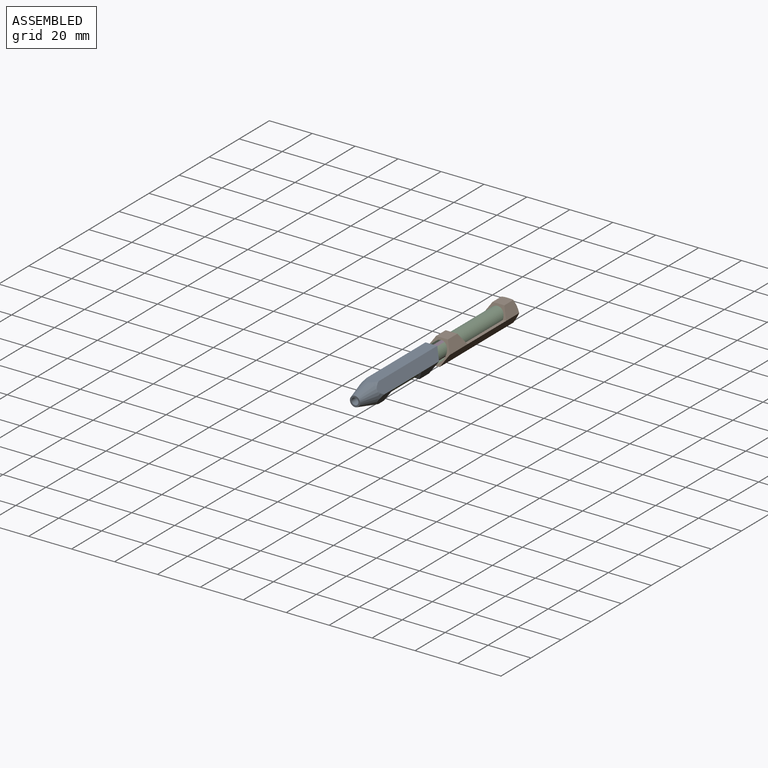
[diagram: assembled view]
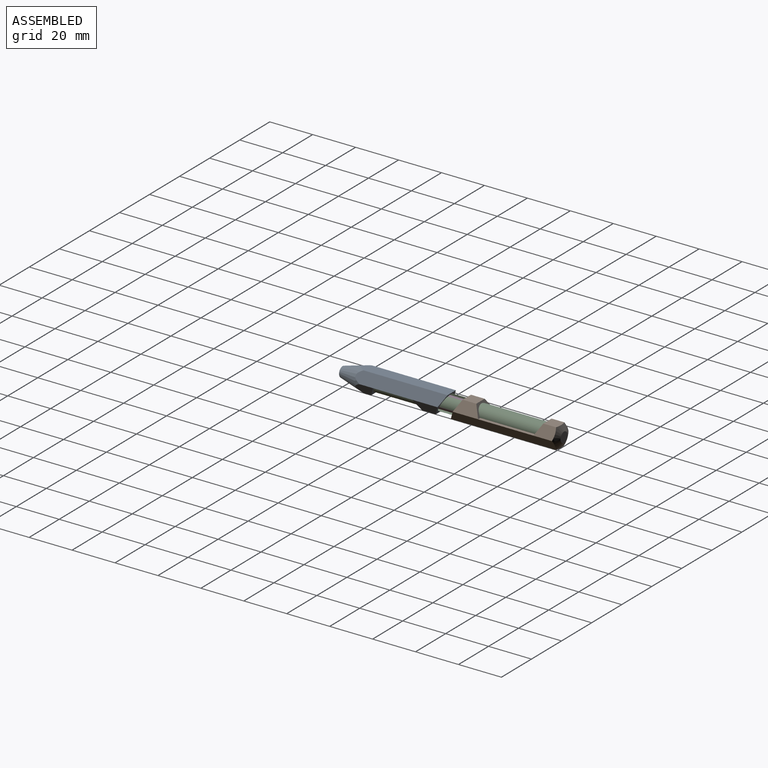
[diagram: assembled view, second angle]
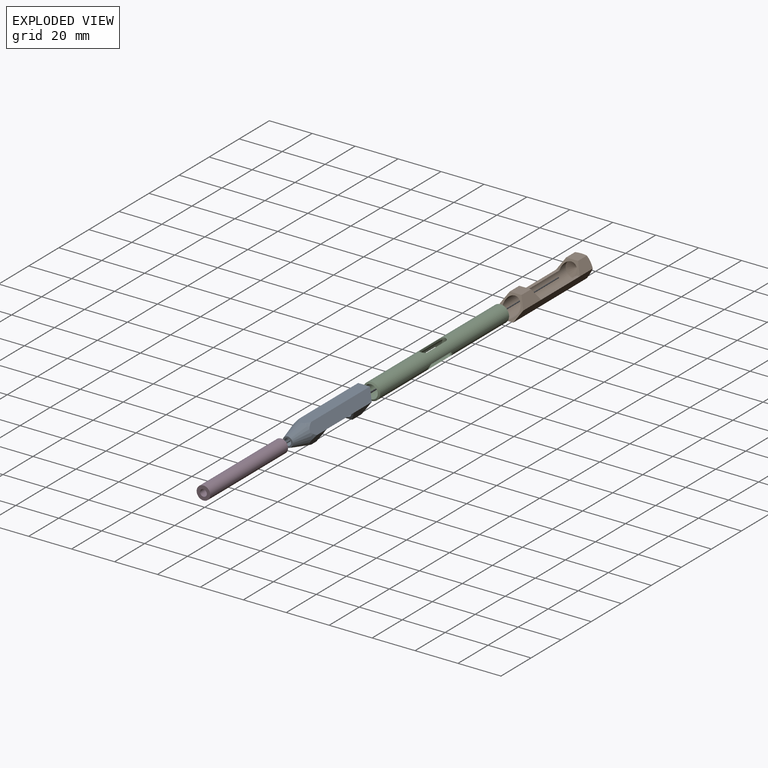
[diagram: exploded view]
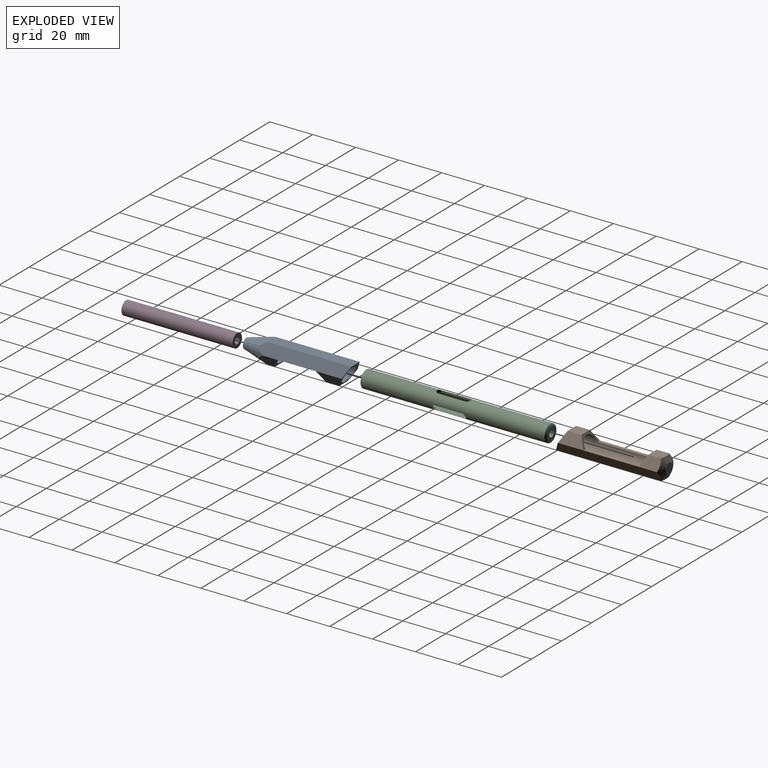
[diagram: exploded view, second angle]
ASSEMBLY  parts=4 mates=3
PART A: 19 faces, bbox 11x50.8x11 mm
  f0: plane 6.35x5.5mm, normal (0,0,-1), area 34.9mm2, adj f2,f4,f14,f16
  f1: plane 9.1x4.76mm, normal (0.87,0,-0.5), area 37.3mm2, adj f8,f9,f13,f15
  f2: plane 11.85x4.76mm, normal (0.87,0,-0.5), area 50mm2, adj f0,f9,f14,f16
  f3: plane 9.1x4.76mm, normal (-0.87,0,-0.5), area 37.3mm2, adj f8,f11,f13,f15
  f4: plane 11.85x4.76mm, normal (-0.87,0,-0.5), area 50mm2, adj f0,f11,f14,f16
  f5: cylinder r=3.97mm len=39.23mm, axis (0,1,0), area 657.6mm2, adj f12,f14,f15,f16,f17,f18
  f6: plane 4.76x4.76mm, normal (0,-1,0), area 9.9mm2, adj f7,f13
  f7: cylinder r=1.59mm len=9.68mm, axis (0,1,0), area 96.6mm2, adj f6,f12
  f8: plane 6.35x5.5mm, normal (0,0,-1), area 29.7mm2, adj f1,f3,f13,f15
  f9: plane 41.92x4.76mm, normal (0.87,0,0.5), area 217.7mm2, adj f1,f2,f10,f13,f14,f17
  f10: plane 41.91x5.5mm, normal (0,0,1), area 225.3mm2, adj f9,f11,f13,f14
  f11: plane 41.92x4.76mm, normal (-0.87,0,0.5), area 217.7mm2, adj f3,f4,f10,f13,f14,f18
  f12: cone r=0mm half-angle=59deg, axis (0,1,0), area 48.5mm2, adj f5,f7
  f13: cone r=2.38mm half-angle=15deg, axis (0,1,0), area 234.8mm2, adj f1,f3,f6,f8,f9,f10,f11
  f14: plane 11x9.53mm, normal (0,0.87,-0.5), area 33.6mm2, adj f0,f2,f4,f5,f9,f10,f11
  f15: plane 11x4.76mm, normal (0,0.87,-0.5), area 16.8mm2, adj f1,f3,f5,f8,f17,f18
  f16: plane 11x4.76mm, normal (0,-0.87,-0.5), area 16.8mm2, adj f0,f2,f4,f5,f17,f18
  f17: plane 18.21x1.53mm, normal (0,0,-1), area 27.9mm2, adj f5,f9,f15,f16
  f18: plane 18.21x1.53mm, normal (0,0,-1), area 27.9mm2, adj f5,f11,f15,f16
PART B: 18 faces, bbox 11.5x51.3x11.5 mm
  f0: plane 6.35x5.5mm, normal (0,0,1), area 34.9mm2, adj f1,f2,f11,f12
  f1: plane 11.85x4.76mm, normal (0.87,0,0.5), area 50mm2, adj f0,f4,f11,f12
  f2: plane 11.85x4.76mm, normal (-0.87,0,0.5), area 50mm2, adj f0,f8,f11,f12
  f3: plane 49.88x5.96mm, normal (0,0,-1), area 271mm2, adj f4,f8,f9,f11
  f4: plane 49.43x4.76mm, normal (0.87,0,-0.5), area 263.4mm2, adj f1,f3,f5,f9,f11,f13
  f5: plane 9.1x4.76mm, normal (0.87,0,0.5), area 41.7mm2, adj f4,f6,f9,f15
  f6: plane 6.35x5.5mm, normal (0,0,1), area 34.1mm2, adj f5,f7,f9,f15
  f7: plane 9.1x4.76mm, normal (-0.87,0,0.5), area 41.7mm2, adj f6,f8,f9,f15
  f8: plane 49.43x4.76mm, normal (-0.87,0,-0.5), area 263.4mm2, adj f2,f3,f7,f9,f11,f14
  f9: cone r=2.38mm half-angle=60deg, axis (0,-1,0), area 71mm2, adj f3,f4,f5,f6,f7,f8,f10
  f10: plane 4.76x4.76mm, normal (0,1,0), area 17.8mm2, adj f9
  f11: plane 11x9.53mm, normal (0,-0.87,0.5), area 33.6mm2, adj f0,f1,f2,f3,f4,f8,f17
  f12: plane 11x4.76mm, normal (0,0.87,0.5), area 16.8mm2, adj f0,f1,f2,f13,f14,f17
  f13: plane 25.73x1.53mm, normal (0,0,1), area 39.4mm2, adj f4,f12,f15,f17
  f14: plane 25.73x1.53mm, normal (0,0,1), area 39.4mm2, adj f8,f12,f15,f17
  f15: plane 11x4.76mm, normal (0,-0.87,0.5), area 16.8mm2, adj f5,f6,f7,f13,f14,f17
  f16: cone r=0mm half-angle=59deg, axis (0,-1,0), area 57.7mm2, adj f17
  f17: cylinder r=3.97mm len=43.99mm, axis (0,-1,0), area 682.7mm2, adj f11,f12,f13,f14,f15,f16
PART C: 31 faces, bbox 8.5x86.7x7.9 mm
  f0: cylinder r=3.17mm len=51.75mm, axis (0,-1,0), area 881.1mm2, adj f5,f6,f7,f8,f9,f10,f11,f12
  f1: cylinder r=3.97mm len=85.73mm, axis (0,-1,0), area 1988.9mm2, adj f2,f6,f7,f8,f9,f10,f11,f12
  f2: cone r=3.17mm half-angle=59deg, axis (0,-1,0), area 20.8mm2, adj f1,f3
  f3: plane 6.35x6.35mm, normal (0,1,0), area 23.8mm2, adj f2,f4
  f4: cylinder r=1.59mm len=34.27mm, axis (0,-1,0), area 341.8mm2, adj f3,f5
  f5: cone r=1.59mm half-angle=67.5deg, axis (0,-1,0), area 25.7mm2, adj f0,f4
  f6: cone r=3.97mm half-angle=59deg, axis (0,1,0), area 20.8mm2, adj f0,f1
  f7: plane 0.7x0.42mm, normal (0,1,0), area 0mm2, adj f0,f1,f19,f25
  f8: plane 0.7x0.42mm, normal (0,-1,0), area 0mm2, adj f0,f1,f22,f28
  f9: plane 12.73x0.77mm, normal (-0.5,0,0.87), area 11.3mm2, adj f0,f1,f19,f28
  f10: plane 12.73x0.77mm, normal (0.5,0,-0.87), area 11.3mm2, adj f0,f1,f22,f25
  f11: plane 0.79x0.03mm, normal (0,1,0), area 0mm2, adj f0,f1,f21,f27
  f12: plane 0.79x0.03mm, normal (0,-1,0), area 0mm2, adj f0,f1,f24,f30
  f13: plane 12.73x0.89mm, normal (1,0,0), area 11.3mm2, adj f0,f1,f21,f30
  f14: plane 12.73x0.89mm, normal (-1,0,0), area 11.3mm2, adj f0,f1,f24,f27
  f15: plane 12.73x0.77mm, normal (0.5,0,0.87), area 11.3mm2, adj f0,f1,f23,f26
  f16: plane 12.73x0.77mm, normal (-0.5,0,-0.87), area 11.3mm2, adj f0,f1,f20,f29
  f17: plane 0.7x0.42mm, normal (0,-1,0), area 0mm2, adj f0,f1,f23,f29
  f18: plane 0.7x0.42mm, normal (0,1,0), area 0mm2, adj f0,f1,f20,f26
  f19: cylinder r=1.57mm len=1.97mm, axis (-0.87,0,-0.5), area 2.1mm2, adj f0,f1,f7,f9
  f20: cylinder r=1.57mm len=1.97mm, axis (0.87,0,-0.5), area 2.1mm2, adj f0,f1,f16,f18
  f21: cylinder r=1.57mm len=1.58mm, axis (0,0,1), area 2.1mm2, adj f0,f1,f11,f13
  f22: cylinder r=1.57mm len=1.97mm, axis (-0.87,0,-0.5), area 2.1mm2, adj f0,f1,f8,f10
  f23: cylinder r=1.57mm len=1.97mm, axis (0.87,0,-0.5), area 2.1mm2, adj f0,f1,f15,f17
  f24: cylinder r=1.57mm len=1.58mm, axis (0,0,1), area 2.1mm2, adj f0,f1,f12,f14
  f25: cylinder r=1.57mm len=1.97mm, axis (0.87,0,0.5), area 2.1mm2, adj f0,f1,f7,f10
  f26: cylinder r=1.57mm len=1.97mm, axis (-0.87,0,0.5), area 2.1mm2, adj f0,f1,f15,f18
  f27: cylinder r=1.57mm len=1.58mm, axis (0,0,-1), area 2.1mm2, adj f0,f1,f11,f14
  f28: cylinder r=1.57mm len=1.97mm, axis (0.87,0,0.5), area 2.1mm2, adj f0,f1,f8,f9
  f29: cylinder r=1.57mm len=1.97mm, axis (-0.87,0,0.5), area 2.1mm2, adj f0,f1,f16,f17
  f30: cylinder r=1.57mm len=1.58mm, axis (0,0,-1), area 2.1mm2, adj f0,f1,f12,f13
PART D: 4 faces, bbox 6.4x51.8x6.4 mm
  f0: cylinder r=1.59mm len=51.75mm, axis (0,1,0), area 516.2mm2, adj f2,f3
  f1: cylinder r=3.17mm len=51.75mm, axis (0,1,0), area 1032.4mm2, adj f2,f3
  f2: plane 6.35x6.35mm, normal (0,-1,0), area 23.8mm2, adj f0,f1
  f3: plane 6.35x6.35mm, normal (0,1,0), area 23.8mm2, adj f0,f1
PLACE A t=(0,50.8,0)mm
PLACE B t=(0,103.16,0)mm
PLACE C t=(0,10.63,0)mm
PLACE D t=(0,62.39,0)mm
MATE slider C.f0 <-> A.f5  axis (0,-1,0) through (0,53.97,0)mm
MATE slider C.f0 <-> D.f1  axis (0,-1,0) through (0,36.5,0)mm
MATE slider C.f0 <-> B.f9  axis (0,-1,0) through (0,53.97,0)mm
